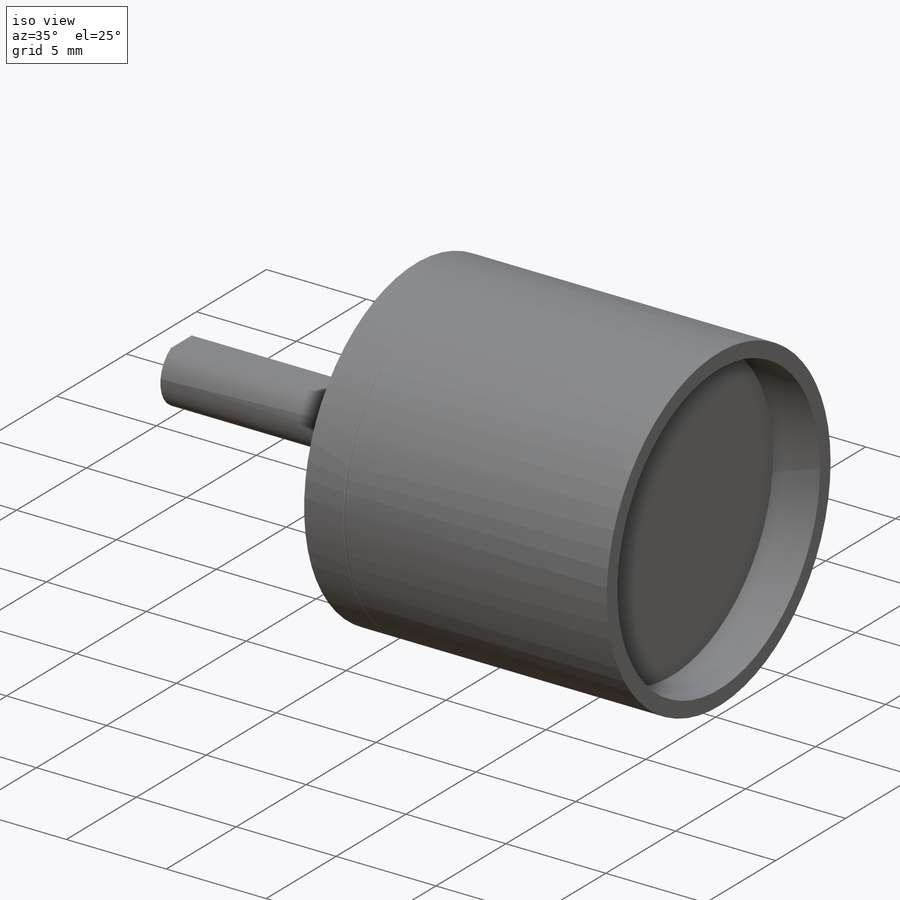
[diagram: iso view]
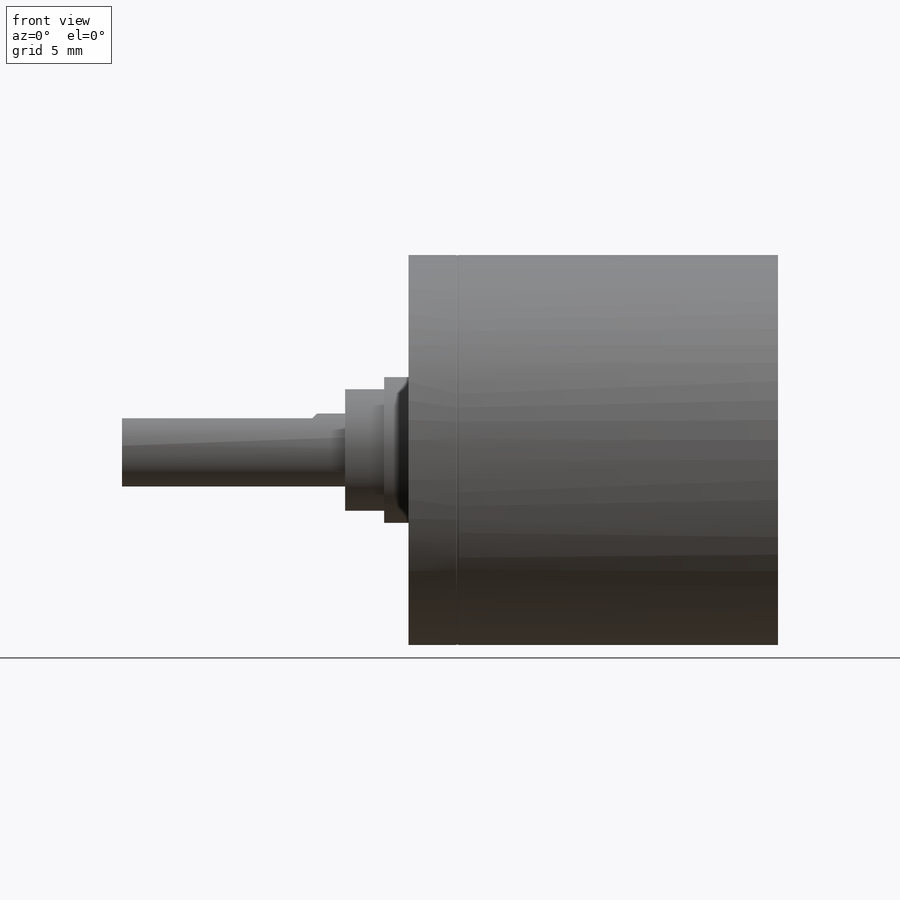
[diagram: front view]
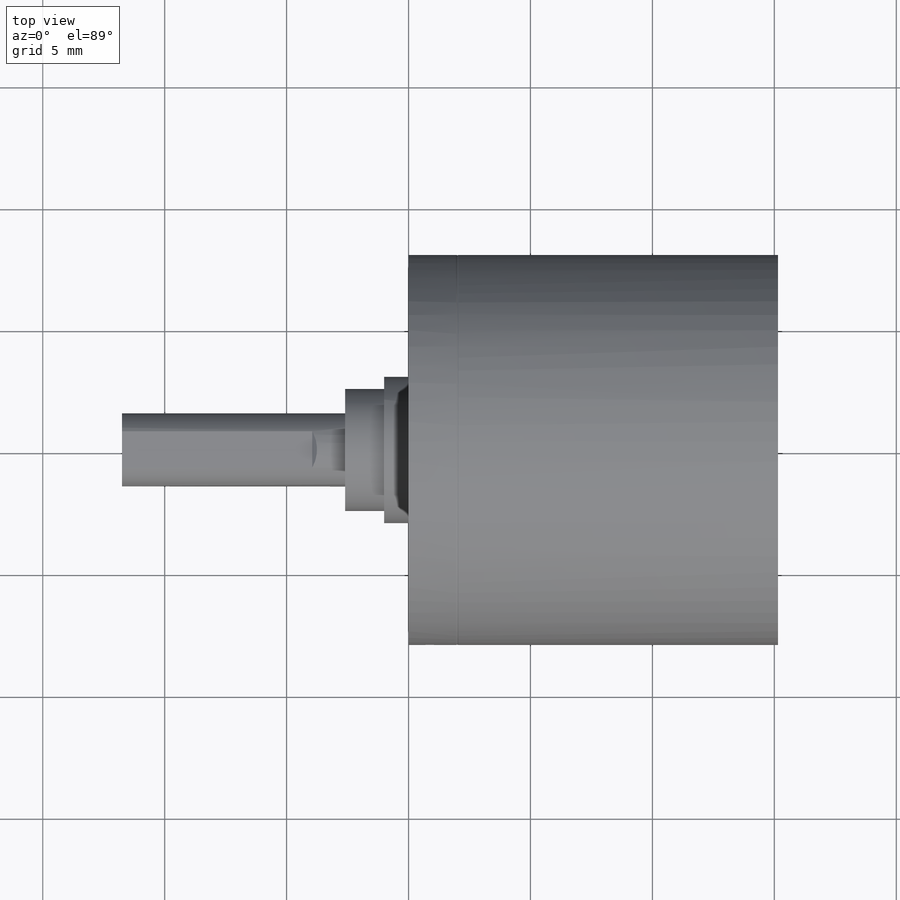
[diagram: top view]
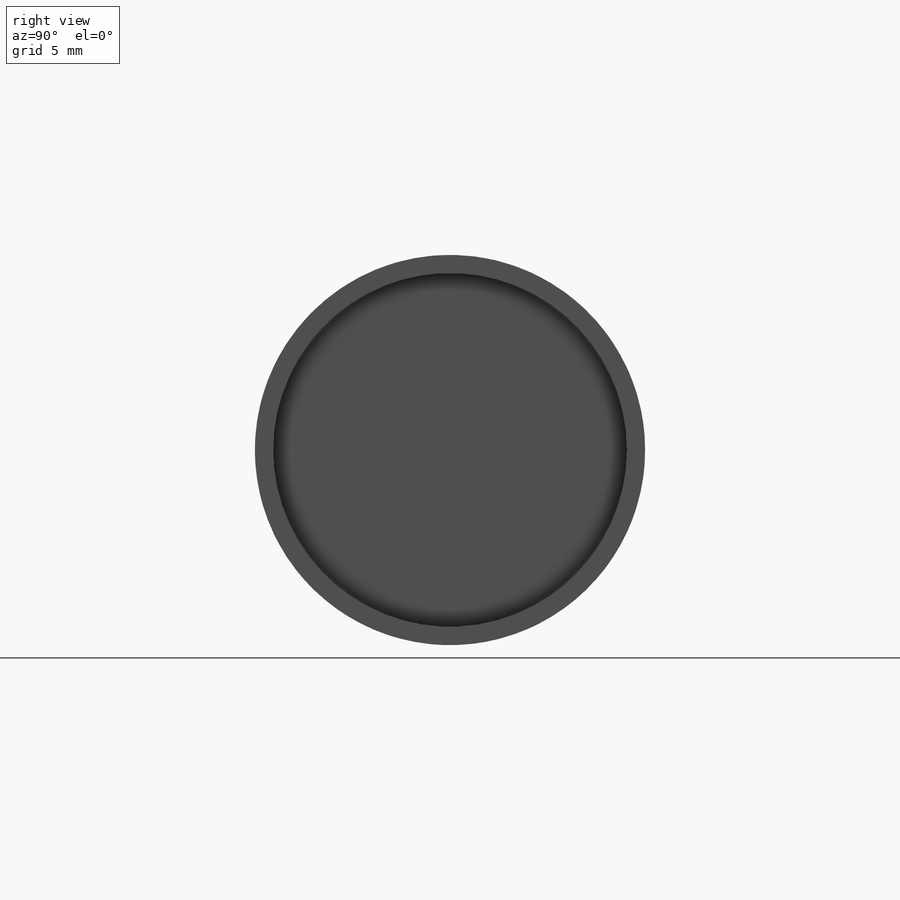
[diagram: right view]
SOLIDWORKS PART (.sldprt)
format: sldprt  version: not decoded by parser v0  size: 278,016 bytes
history: native  units: mm
features: sketch x9, extrude x3, hole x2, material x1, revolve x1, cut_extrude x1 (+11 scaffold rows collapsed)
feature tree (28):
  scaffold x11  (default folders/planes/origin — collapsed)
  material  "Material <not specified>"
  sketch  "Sketch1"
  revolve  "Revolve1"  Angle=360deg
  sketch  "Sketch2"
  extrude  "Boss-Extrude1"  Depth=1mm
  sketch  "Sketch3"
  extrude  "Boss-Extrude2"  Depth=1.6mm
  sketch  "Sketch4"  dims[D1=3.0mm]
  extrude  "Boss-Extrude3"  Depth=9.15mm
  sketch  "Sketch5"
  cut_extrude  "Cut-Extrude1"  Depth=7.8mm
  hole  "Ø14.5 (14.5) Diameter Hole1"  Diameter=14.5mm Depth=2.35mm
  sketch  "Sketch7"
  sketch  "Sketch6"  dims[hole-wizard template sketch: 46 standard entries collapsed; hole parameters kept: c15.Hole Dia.=14.5mm c15.Hole Depth=2.35mm c15.D3=~14.816244mm c15.Drill Angle=180.0deg]
  hole  "Ø1.6 (1.6) Diameter Hole1"  Diameter=1.6mm Depth=3mm
  sketch  "Sketch9"
  sketch  "Sketch8"  dims[hole-wizard template sketch: 47 standard entries collapsed; hole parameters kept: c15.Hole Depth=3.0mm c15.D3=~14.816244mm c15.Drill Angle=118.0deg]
decode coverage: 10 of 16 modeling features carry decoded parameters
note: ~ marks probable driven/reference dimensions
note: suppression state not decoded; provenance and decode notes live in map.json
